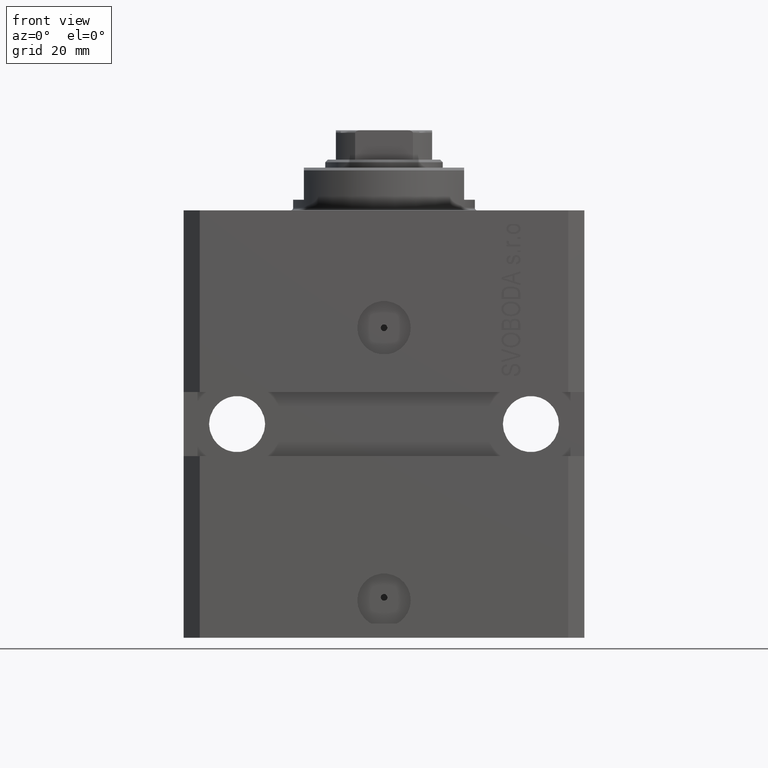
[diagram: clean part render]
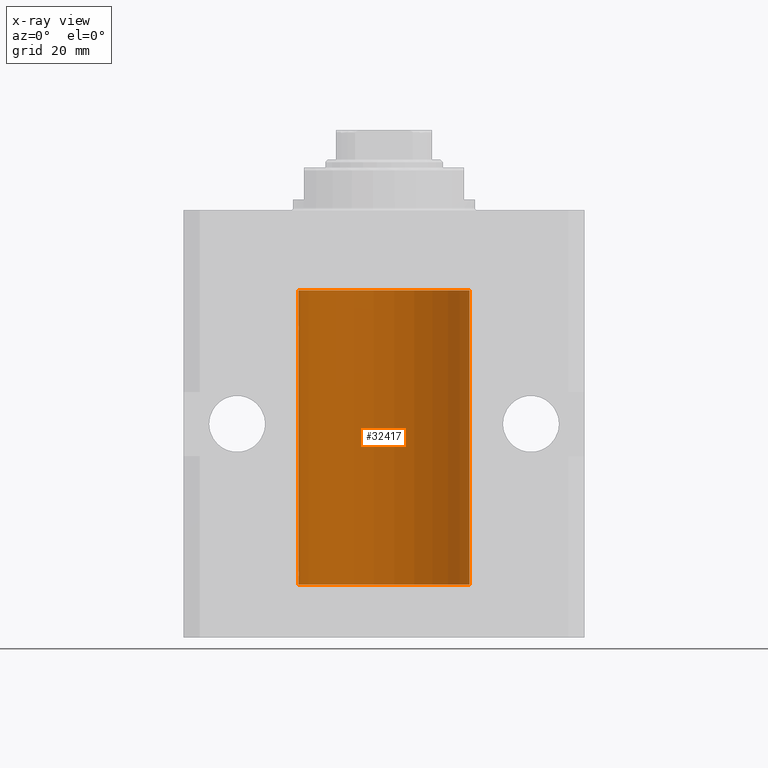
[diagram: x-ray — body ghosted, one internal face saturated and labeled with its STEP entity id]
A machine part, front view, then the same camera in x-ray: the body is ghosted and one INTERNAL B-rep face — a face not visible from any outside direction — is saturated and labeled: STEP entity #32417.
In plain terms, the highlighted cylindrical surface (partial cylindrical patch) has radius 16 mm, axis along (0, 0, 1).
Its self-contained STEP definition (entity closure, byte-faithful):
#30 = CARTESIAN_POINT ( 'NONE',  ( -16.00000000000013145, 3.685127034031037939E-13, -22.62500000000341771 ) ) ;
#153 = VERTEX_POINT ( 'NONE', #18286 ) ;
#612 = CARTESIAN_POINT ( 'NONE',  ( 0.000000000000000000, 0.000000000000000000, -15.00000000000000000 ) ) ;
#1102 = CARTESIAN_POINT ( 'NONE',  ( -16.00000000000013145, 3.685127046438747128E-13, -68.62500000000343903 ) ) ;
#1254 = CARTESIAN_POINT ( 'NONE',  ( -15.99934216141748244, 0.1636497843296417787, -21.39126528029306229 ) ) ;
#1965 = CARTESIAN_POINT ( 'NONE',  ( -15.98844267028591482, 0.6088369347963316081, -22.16324735024328518 ) ) ;
#4889 = DIRECTION ( 'NONE',  ( -0.000000000000000000, -0.000000000000000000, 1.000000000000000000 ) ) ;
#4957 = CARTESIAN_POINT ( 'NONE',  ( -16.00000000000000000, -9.346608026143465119E-15, -67.37500000000000000 ) ) ;
#5536 = DIRECTION ( 'NONE',  ( -0.000000000000000000, -0.000000000000000000, 1.000000000000000000 ) ) ;
#5980 = CARTESIAN_POINT ( 'NONE',  ( -15.99070653155267685, 0.5573233280232986475, -21.67348148680506625 ) ) ;
#6286 = CARTESIAN_POINT ( 'NONE',  ( -16.00000000000000000, 1.643679961284177128E-16, -21.37499999999999645 ) ) ;
#6393 = VECTOR ( 'NONE', #39076, 1000.000000000000000 ) ;
#6437 = DIRECTION ( 'NONE',  ( -0.000000000000000000, -0.000000000000000000, 1.000000000000000000 ) ) ;
#6894 = LINE ( 'NONE', #39092, #42146 ) ;
#7015 = DIRECTION ( 'NONE',  ( 0.000000000000000000, 0.000000000000000000, 1.000000000000000000 ) ) ;
#8234 = CARTESIAN_POINT ( 'NONE',  ( -15.99070653155268040, 0.5573233280232966491, -67.67348148680505915 ) ) ;
#8438 = ORIENTED_EDGE ( 'NONE', *, *, #19845, .F. ) ;
#9080 = CARTESIAN_POINT ( 'NONE',  ( -16.00000000000000000, 1.959434878635765131E-15, -70.09999999999999432 ) ) ;
#9819 = VERTEX_POINT ( 'NONE', #6286 ) ;
#10102 = CIRCLE ( 'NONE', #10835, 16.00000000000000000 ) ;
#10453 = CARTESIAN_POINT ( 'NONE',  ( 16.00000000000000000, 0.000000000000000000, -70.09999999999999432 ) ) ;
#10660 = CARTESIAN_POINT ( 'NONE',  ( -16.00000000000000000, 1.959434878635765131E-15, -15.00000000000000000 ) ) ;
#10835 = AXIS2_PLACEMENT_3D ( 'NONE', #612, #7015, #36123 ) ;
#11557 = CARTESIAN_POINT ( 'NONE',  ( -15.98844267028591126, 0.6088369347963314970, -68.16324735024328163 ) ) ;
#12023 = CARTESIAN_POINT ( 'NONE',  ( -15.99228023727723702, 0.5003781296993395911, -68.38347829554236057 ) ) ;
#12039 = VERTEX_POINT ( 'NONE', #4957 ) ;
#12379 = CARTESIAN_POINT ( 'NONE',  ( -16.00000000000000000, 1.643679961284177128E-16, -21.37499999999999645 ) ) ;
#12438 = ORIENTED_EDGE ( 'NONE', *, *, #29956, .F. ) ;
#12700 = VERTEX_POINT ( 'NONE', #10660 ) ;
#12897 = DIRECTION ( 'NONE',  ( 1.000000000000000000, 0.000000000000000000, 0.000000000000000000 ) ) ;
#14865 = AXIS2_PLACEMENT_3D ( 'NONE', #41586, #4889, #20050 ) ;
#15531 = ORIENTED_EDGE ( 'NONE', *, *, #37678, .F. ) ;
#15627 = EDGE_CURVE ( 'NONE', #12039, #37312, #24181, .T. ) ;
#16625 = CARTESIAN_POINT ( 'NONE',  ( -16.00000000000000000, 0.1631714642025800244, -22.62499999999985789 ) ) ;
#17095 = CARTESIAN_POINT ( 'NONE',  ( -15.98779057735153941, 0.6249419637998100407, -21.83670145863507273 ) ) ;
#17160 = EDGE_CURVE ( 'NONE', #44454, #12700, #10102, .T. ) ;
#18286 = CARTESIAN_POINT ( 'NONE',  ( -16.00000000000000000, 1.959434878635765131E-15, -70.09999999999999432 ) ) ;
#19307 = CARTESIAN_POINT ( 'NONE',  ( 0.000000000000000000, 0.000000000000000000, -70.09999999999999432 ) ) ;
#19845 = EDGE_CURVE ( 'NONE', #153, #32389, #22571, .T. ) ;
#20050 = DIRECTION ( 'NONE',  ( 1.000000000000000000, 0.000000000000000000, 0.000000000000000000 ) ) ;
#20364 = CIRCLE ( 'NONE', #46815, 16.00000000000000000 ) ;
#20419 = CARTESIAN_POINT ( 'NONE',  ( -16.00000000000013145, 3.685127034031037939E-13, -22.62500000000341771 ) ) ;
#20651 = CARTESIAN_POINT ( 'NONE',  ( -15.99548640841683067, 0.3843705577988847377, -21.50046628527008608 ) ) ;
#21082 = LINE ( 'NONE', #38851, #6393 ) ;
#21100 = DIRECTION ( 'NONE',  ( -0.000000000000000000, -0.000000000000000000, 1.000000000000000000 ) ) ;
#21823 = EDGE_CURVE ( 'NONE', #38714, #44454, #21082, .T. ) ;
#22571 = LINE ( 'NONE', #9080, #28206 ) ;
#22681 = CARTESIAN_POINT ( 'NONE',  ( -15.99711699979840951, 0.3253759916140645525, -68.55856151623176231 ) ) ;
#23498 = CARTESIAN_POINT ( 'NONE',  ( -15.99707730059171240, 0.3150375992092407373, -21.45402333202571654 ) ) ;
#24181 = LINE ( 'NONE', #38868, #36517 ) ;
#24842 = EDGE_LOOP ( 'NONE', ( #8438, #15531, #45180, #45621, #12438, #34982, #30707, #29720 ) ) ;
#26411 = FACE_OUTER_BOUND ( 'NONE', #24842, .T. ) ;
#26461 = CARTESIAN_POINT ( 'NONE',  ( -15.99999999999998934, 0.1631714642025807183, -68.62499999999984368 ) ) ;
#28206 = VECTOR ( 'NONE', #5536, 1000.000000000000000 ) ;
#29085 = CARTESIAN_POINT ( 'NONE',  ( -15.99070426498502862, 0.5462220647145645813, -68.31460064614141459 ) ) ;
#29312 = CARTESIAN_POINT ( 'NONE',  ( -15.99934216141748244, 0.1636497843296345067, -67.39126528029308361 ) ) ;
#29543 = CARTESIAN_POINT ( 'NONE',  ( -15.98779057735153586, 0.6249419637998054888, -67.83670145863507628 ) ) ;
#29720 = ORIENTED_EDGE ( 'NONE', *, *, #40229, .T. ) ;
#29776 = CARTESIAN_POINT ( 'NONE',  ( -15.99707730059171240, 0.3150375992092334654, -67.45402333202571299 ) ) ;
#29956 = EDGE_CURVE ( 'NONE', #9819, #12700, #6894, .T. ) ;
#30012 = CARTESIAN_POINT ( 'NONE',  ( -16.00000000000000000, -9.346608026143465119E-15, -67.37500000000000000 ) ) ;
#30366 = B_SPLINE_CURVE_WITH_KNOTS ( 'NONE', 3,
 ( #12379, #33675, #1254, #23498, #20651, #5980, #17095, #34620, #1965, #38182, #45982, #31526, #16625, #20419 ),
 .UNSPECIFIED., .F., .F.,
 ( 4, 2, 2, 2, 2, 2, 4 ),
 ( 1.597328219370744179E-19, 0.0002442776652680942405, 0.0004885553305361882643, 0.0009771106610723839011, 0.001221388326340481665, 0.001465665991608579430, 0.001954221322144767369 ),
 .UNSPECIFIED. ) ;
#30707 = ORIENTED_EDGE ( 'NONE', *, *, #15627, .F. ) ;
#31526 = CARTESIAN_POINT ( 'NONE',  ( -15.99711699979842017, 0.3253759916140657737, -22.55856151623175521 ) ) ;
#32389 = VERTEX_POINT ( 'NONE', #1102 ) ;
#32417 = ADVANCED_FACE ( 'NONE', ( #26411 ), #40865, .F. ) ;
#33675 = CARTESIAN_POINT ( 'NONE',  ( -16.00000000000000711, 0.08259886010189904093, -21.37500000000000000 ) ) ;
#34620 = CARTESIAN_POINT ( 'NONE',  ( -15.98778717651346071, 0.6250289588122140971, -22.08131585687052478 ) ) ;
#34982 = ORIENTED_EDGE ( 'NONE', *, *, #45800, .T. ) ;
#36123 = DIRECTION ( 'NONE',  ( 1.000000000000000000, 0.000000000000000000, 0.000000000000000000 ) ) ;
#36517 = VECTOR ( 'NONE', #21100, 1000.000000000000000 ) ;
#37291 = DIRECTION ( 'NONE',  ( 0.000000000000000000, 0.000000000000000000, 1.000000000000000000 ) ) ;
#37312 = VERTEX_POINT ( 'NONE', #30 ) ;
#37678 = EDGE_CURVE ( 'NONE', #38714, #153, #20364, .T. ) ;
#38182 = CARTESIAN_POINT ( 'NONE',  ( -15.99070426498503217, 0.5462220647145618058, -22.31460064614143590 ) ) ;
#38714 = VERTEX_POINT ( 'NONE', #10453 ) ;
#38851 = CARTESIAN_POINT ( 'NONE',  ( 16.00000000000000000, 0.000000000000000000, -70.09999999999999432 ) ) ;
#38868 = CARTESIAN_POINT ( 'NONE',  ( -16.00000000000000000, 1.959434878635765131E-15, -70.09999999999999432 ) ) ;
#39076 = DIRECTION ( 'NONE',  ( -0.000000000000000000, -0.000000000000000000, 1.000000000000000000 ) ) ;
#39092 = CARTESIAN_POINT ( 'NONE',  ( -16.00000000000000000, 1.959434878635765131E-15, -70.09999999999999432 ) ) ;
#40229 = EDGE_CURVE ( 'NONE', #12039, #32389, #45359, .T. ) ;
#40678 = CARTESIAN_POINT ( 'NONE',  ( -16.00000000000000711, 0.08259886010189028405, -67.37500000000001421 ) ) ;
#40865 = CYLINDRICAL_SURFACE ( 'NONE', #14865, 16.00000000000000000 ) ;
#40915 = CARTESIAN_POINT ( 'NONE',  ( -16.00000000000013145, 3.685127046438747128E-13, -68.62500000000343903 ) ) ;
#41586 = CARTESIAN_POINT ( 'NONE',  ( 0.000000000000000000, 0.000000000000000000, -70.09999999999999432 ) ) ;
#42146 = VECTOR ( 'NONE', #6437, 1000.000000000000000 ) ;
#44000 = CARTESIAN_POINT ( 'NONE',  ( -15.98778717651346426, 0.6250289588122136530, -68.08131585687053189 ) ) ;
#44238 = CARTESIAN_POINT ( 'NONE',  ( -15.99548640841682712, 0.3843705577988820732, -67.50046628527007897 ) ) ;
#44454 = VERTEX_POINT ( 'NONE', #44755 ) ;
#44755 = CARTESIAN_POINT ( 'NONE',  ( 16.00000000000000000, 0.000000000000000000, -15.00000000000000000 ) ) ;
#45180 = ORIENTED_EDGE ( 'NONE', *, *, #21823, .T. ) ;
#45359 = B_SPLINE_CURVE_WITH_KNOTS ( 'NONE', 3,
 ( #30012, #40678, #29312, #29776, #44238, #8234, #29543, #44000, #11557, #29085, #12023, #22681, #26461, #40915 ),
 .UNSPECIFIED., .F., .F.,
 ( 4, 2, 2, 2, 2, 2, 4 ),
 ( 9.902737362640428303E-19, 0.0002442776652680895785, 0.0004885553305361781812, 0.0009771106610723552782, 0.001221388326340464752, 0.001465665991608574008, 0.001954221322144763465 ),
 .UNSPECIFIED. ) ;
#45621 = ORIENTED_EDGE ( 'NONE', *, *, #17160, .T. ) ;
#45800 = EDGE_CURVE ( 'NONE', #9819, #37312, #30366, .T. ) ;
#45982 = CARTESIAN_POINT ( 'NONE',  ( -15.99228023727724413, 0.5003781296993413674, -22.38347829554236057 ) ) ;
#46815 = AXIS2_PLACEMENT_3D ( 'NONE', #19307, #37291, #12897 ) ;